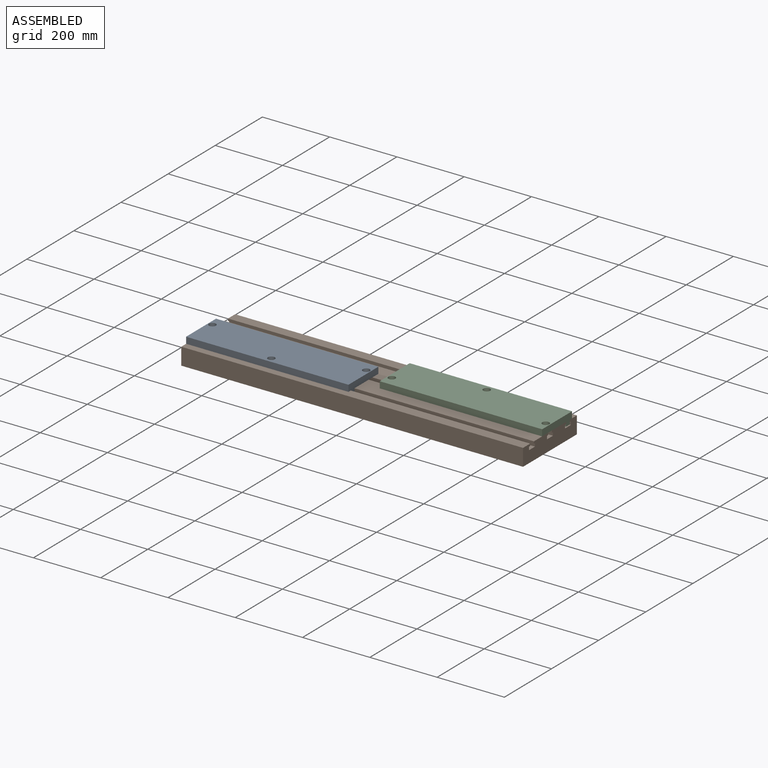
[diagram: assembled view]
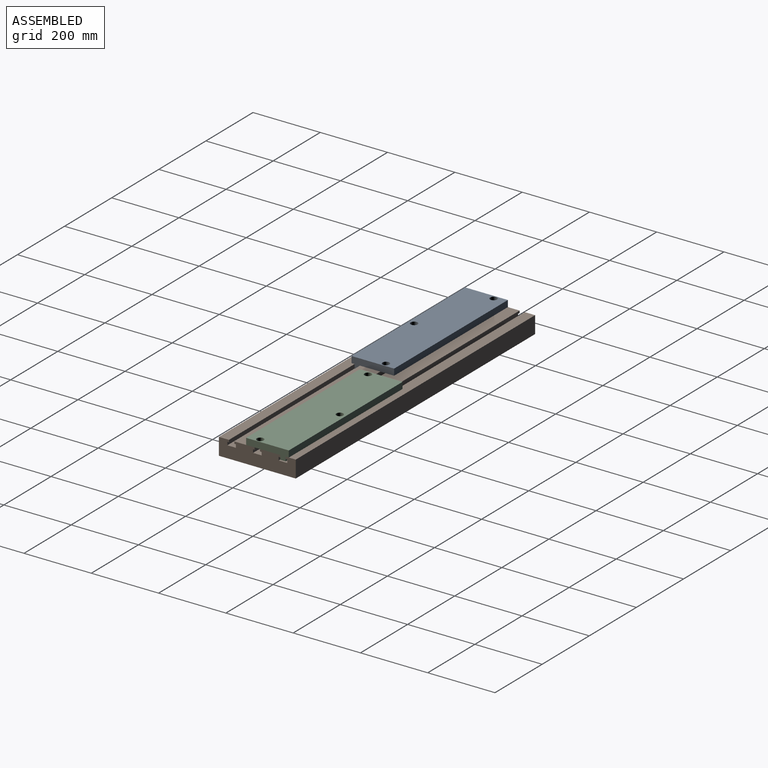
[diagram: assembled view, second angle]
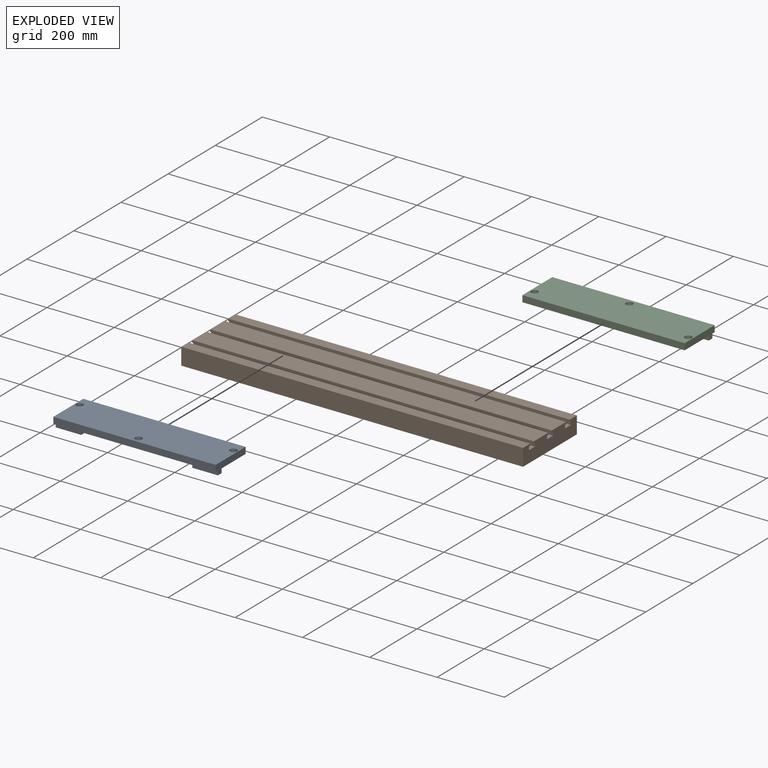
[diagram: exploded view]
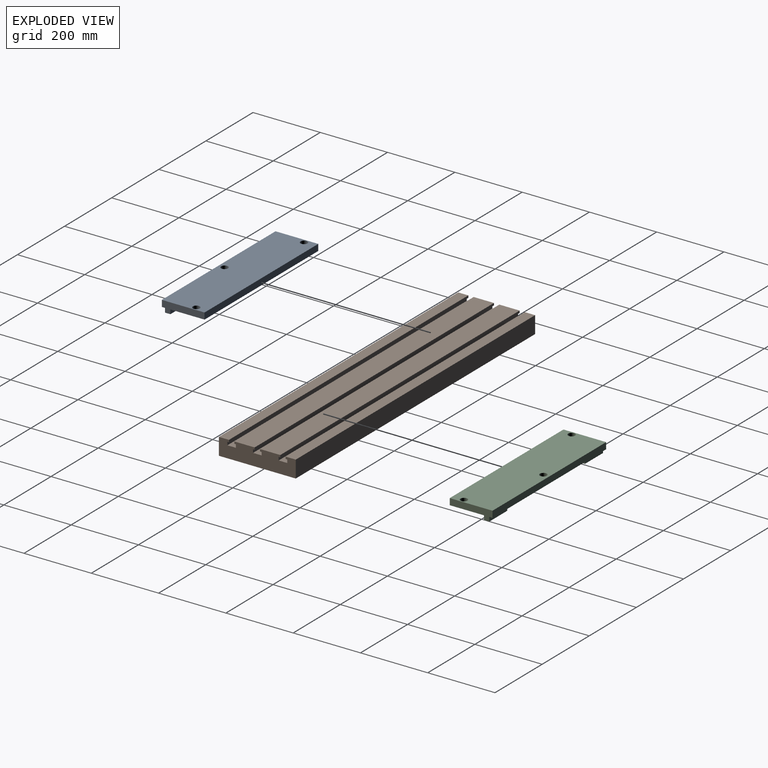
[diagram: exploded view, second angle]
ASSEMBLY  parts=3 mates=2
PART A: 23 faces, bbox 482.6x127x31.8 mm
  f0: plane 482.6x19.05mm, normal (0,-1,0), area 9193.5mm2, adj f1,f3,f4,f5
  f1: plane 127x31.75mm, normal (1,0,0), area 2621mm2, adj f0,f2,f4,f5,f10,f11,f13
  f2: plane 482.6x19.05mm, normal (0,1,0), area 9193.5mm2, adj f1,f3,f4,f5
  f3: plane 127x31.75mm, normal (-1,0,0), area 2621mm2, adj f0,f2,f4,f5,f6,f7,f9
  f4: plane 482.6x127mm, normal (0,0,1), area 60286.7mm2, adj f0,f1,f2,f3,f16,f19,f22
  f5: plane 482.6x127mm, normal (0,0,-1), area 58441.9mm2, adj f0,f1,f2,f3,f6,f7,f8,f10
  f6: plane 76.2x12.7mm, normal (0,-1,0), area 967.7mm2, adj f3,f5,f8,f9
  f7: plane 76.2x12.7mm, normal (0,1,0), area 967.7mm2, adj f3,f5,f8,f9
  f8: plane 15.88x12.7mm, normal (1,0,0), area 201.6mm2, adj f5,f6,f7,f9
  f9: plane 76.2x15.88mm, normal (0,0,-1), area 1209.7mm2, adj f3,f6,f7,f8
  f10: plane 76.2x12.7mm, normal (0,1,0), area 967.7mm2, adj f1,f5,f12,f13
  f11: plane 76.2x12.7mm, normal (0,-1,0), area 967.7mm2, adj f1,f5,f12,f13
  f12: plane 15.88x12.7mm, normal (-1,0,0), area 201.6mm2, adj f5,f10,f11,f13
  f13: plane 76.2x15.88mm, normal (0,0,-1), area 1209.7mm2, adj f1,f10,f11,f12
  f14: cylinder r=6.75mm len=13.49mm, axis (0,0,1), area 269.2mm2, adj f5,f15
  f15: plane 20.64x20.64mm, normal (0,0,1), area 191.5mm2, adj f14,f16
  f16: cylinder r=10.32mm len=20.64mm, axis (0,0,1), area 823.4mm2, adj f4,f15
  f17: cylinder r=6.75mm len=13.49mm, axis (0,0,1), area 269.2mm2, adj f5,f18
  f18: plane 20.64x20.64mm, normal (0,0,1), area 191.5mm2, adj f17,f19
  f19: cylinder r=10.32mm len=20.64mm, axis (0,0,1), area 823.4mm2, adj f4,f18
  f20: cylinder r=6.75mm len=13.49mm, axis (0,0,1), area 269.2mm2, adj f5,f21
  f21: plane 20.64x20.64mm, normal (0,0,1), area 191.5mm2, adj f20,f22
  f22: cylinder r=10.32mm len=20.64mm, axis (0,0,1), area 823.4mm2, adj f4,f21
PART B: 30 faces, bbox 1016x228.6x50.8 mm
  f0: plane 1016x30.16mm, normal (0,0,1), area 30645.1mm2, adj f1,f27,f28,f29
  f1: plane 1016x6.35mm, normal (0,-1,0), area 6451.6mm2, adj f0,f2,f28,f29
  f2: plane 1016x4.76mm, normal (0,0,-1), area 4838.7mm2, adj f1,f3,f28,f29
  f3: plane 1016x9.53mm, normal (0,-1,0), area 9677.4mm2, adj f2,f4,f28,f29
  f4: plane 1016x25.4mm, normal (0,0,1), area 25806.4mm2, adj f3,f5,f28,f29
  f5: plane 1016x9.53mm, normal (0,1,0), area 9677.4mm2, adj f4,f6,f28,f29
  f6: plane 1016x4.76mm, normal (0,0,-1), area 4838.7mm2, adj f5,f7,f28,f29
  f7: plane 1016x6.35mm, normal (0,1,0), area 6451.6mm2, adj f6,f8,f28,f29
  f8: plane 1016x60.33mm, normal (0,0,1), area 61290.2mm2, adj f7,f9,f28,f29
  f9: plane 1016x6.35mm, normal (0,-1,0), area 6451.6mm2, adj f8,f10,f28,f29
  f10: plane 1016x4.76mm, normal (0,0,-1), area 4838.7mm2, adj f9,f11,f28,f29
  f11: plane 1016x9.53mm, normal (0,-1,0), area 9677.4mm2, adj f10,f12,f28,f29
  f12: plane 1016x25.4mm, normal (0,0,1), area 25806.4mm2, adj f11,f13,f28,f29
  f13: plane 1016x9.53mm, normal (0,1,0), area 9677.4mm2, adj f12,f14,f28,f29
  f14: plane 1016x4.76mm, normal (0,0,-1), area 4838.7mm2, adj f13,f15,f28,f29
  f15: plane 1016x6.35mm, normal (0,1,0), area 6451.6mm2, adj f14,f16,f28,f29
  f16: plane 1016x60.33mm, normal (0,0,1), area 61290.2mm2, adj f15,f17,f28,f29
  f17: plane 1016x6.35mm, normal (0,-1,0), area 6451.6mm2, adj f16,f18,f28,f29
  f18: plane 1016x4.76mm, normal (0,0,-1), area 4838.7mm2, adj f17,f19,f28,f29
  f19: plane 1016x9.53mm, normal (0,-1,0), area 9677.4mm2, adj f18,f20,f28,f29
  f20: plane 1016x25.4mm, normal (0,0,1), area 25806.4mm2, adj f19,f21,f28,f29
  f21: plane 1016x9.53mm, normal (0,1,0), area 9677.4mm2, adj f20,f22,f28,f29
  f22: plane 1016x4.76mm, normal (0,0,-1), area 4838.7mm2, adj f21,f23,f28,f29
  f23: plane 1016x6.35mm, normal (0,1,0), area 6451.6mm2, adj f22,f24,f28,f29
  f24: plane 1016x30.16mm, normal (0,0,1), area 30645.1mm2, adj f23,f25,f28,f29
  f25: plane 1016x50.8mm, normal (0,-1,0), area 51612.8mm2, adj f24,f26,f28,f29
  f26: plane 1016x228.6mm, normal (0,0,-1), area 232257.6mm2, adj f25,f27,f28,f29
  f27: plane 1016x50.8mm, normal (0,1,0), area 51612.8mm2, adj f0,f26,f28,f29
  f28: plane 228.6x50.8mm, normal (1,0,0), area 10584.7mm2, adj f0,f1,f2,f3,f4,f5,f6,f7
  f29: plane 228.6x50.8mm, normal (-1,0,0), area 10584.7mm2, adj f0,f1,f2,f3,f4,f5,f6,f7
PART C: same geometry as A
PLACE A t=(-279.4,-30.16,0)mm
PLACE B t=(-12.7,0,0)mm fixed
PLACE C rot(axis=(0,0,1),180deg) t=(254,30.16,0)mm
MATE fastened C.f7 <-> B.f7  axis (0,-1,0) through (495.3,68.26,0)mm
MATE fastened A.f6 <-> B.f23  axis (0,-1,0) through (-520.7,-84.14,0)mm
